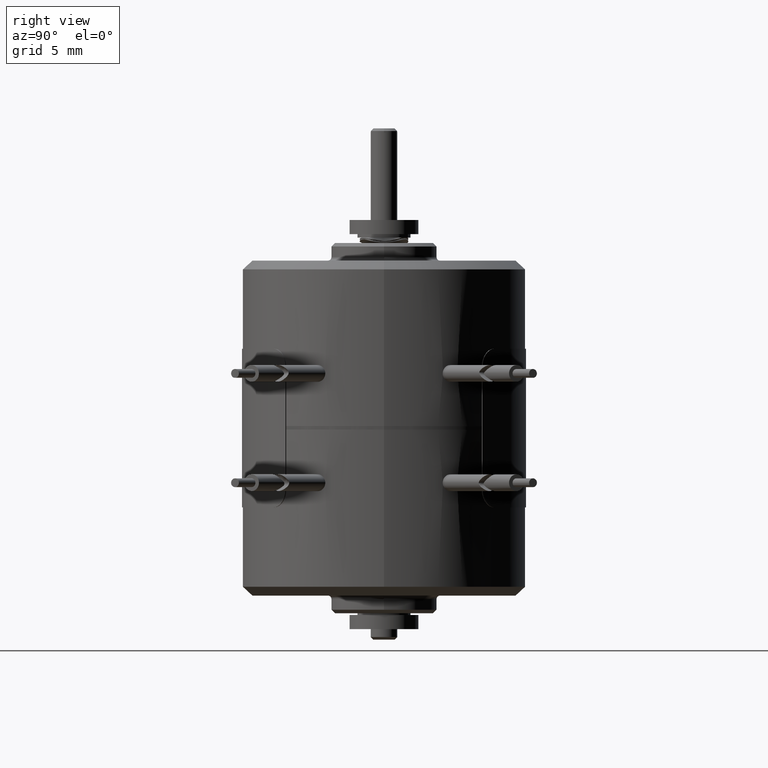
[diagram: clean part render]
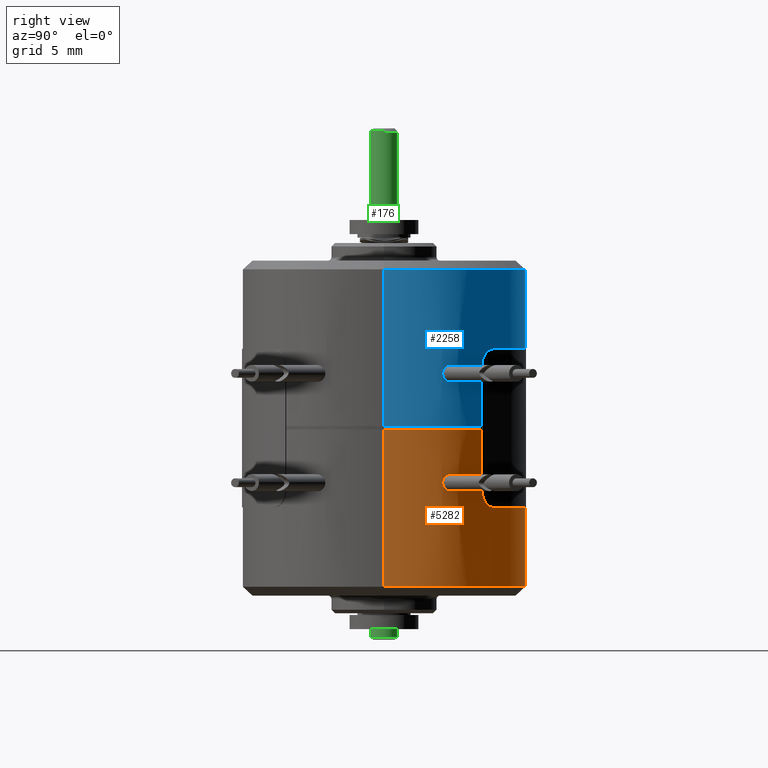
[diagram: same view with three faces highlighted in distinct colors, each labeled with its STEP entity id]
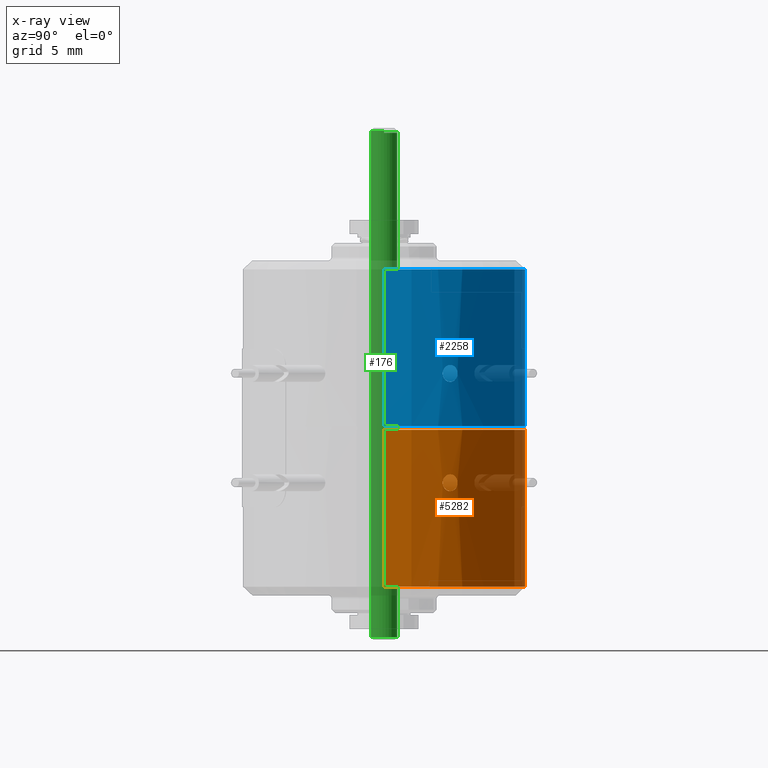
[diagram: x-ray of the same camera — body ghosted, the three highlighted faces saturated]
A machine part, right view with three faces highlighted in distinct colors.
The next image is the same camera in x-ray (body ghosted, the three faces saturated) — at least one of them is partly hidden behind the body in this view.
Their STEP definitions:

[orange] entity #5282 — the highlighted cylindrical surface (partial cylindrical patch) has radius 8 mm, axis along (0, 0, -1).
#4880=CARTESIAN_POINT('',(0.E0,0.E0,-5.2E0));
#4881=DIRECTION('',(0.E0,0.E0,1.E0));
#4882=DIRECTION('',(0.E0,-1.E0,0.E0));
#4883=AXIS2_PLACEMENT_3D('',#4880,#4881,#4882);
#4890=DIRECTION('',(0.E0,0.E0,-1.E0));
#4891=VECTOR('',#4890,8.9E0);
#4892=CARTESIAN_POINT('',(0.E0,8.E0,3.7E0));
#4893=LINE('',#4892,#4891);
#4894=CARTESIAN_POINT('',(3.755772502287E0,7.063580742871E0,-1.725E0));
#4895=CARTESIAN_POINT('',(3.796901404296E0,7.041712117759E0,-1.725E0));
#4896=CARTESIAN_POINT('',(3.875090514643E0,6.999249327187E0,-1.737996327031E0));
#4897=CARTESIAN_POINT('',(3.986204195695E0,6.936477109150E0,-1.796486858992E0));
#4898=CARTESIAN_POINT('',(4.073912431946E0,6.885184280694E0,-1.885920448363E0));
#4899=CARTESIAN_POINT('',(4.137396966451E0,6.847114994023E0,-2.001216491454E0));
#4900=CARTESIAN_POINT('',(4.169851461740E0,6.827325421922E0,-2.131922198005E0));
#4901=CARTESIAN_POINT('',(4.169912755514E0,6.827287946809E0,-2.267837830238E0));
#4902=CARTESIAN_POINT('',(4.137362617132E0,6.847136253151E0,-2.398926089969E0));
#4903=CARTESIAN_POINT('',(4.073767046311E0,6.885270327446E0,-2.514264029844E0));
#4904=CARTESIAN_POINT('',(3.986269142818E0,6.936437220698E0,-2.603401169177E0));
#4905=CARTESIAN_POINT('',(3.875504235395E0,6.999019712166E0,-2.661864885874E0));
#4906=CARTESIAN_POINT('',(3.797087717026E0,7.041613053523E0,-2.675E0));
#4907=CARTESIAN_POINT('',(3.755772502287E0,7.063580742871E0,-2.675E0));
#4909=CARTESIAN_POINT('',(3.755772502287E0,7.063580742871E0,-2.675E0));
#4910=CARTESIAN_POINT('',(3.714586523514E0,7.085479716237E0,-2.675E0));
#4911=CARTESIAN_POINT('',(3.635635455201E0,7.126557740311E0,-2.661830341621E0));
#4912=CARTESIAN_POINT('',(3.523430144312E0,7.182613140636E0,-2.604704446055E0));
#4913=CARTESIAN_POINT('',(3.430682382465E0,7.227241742174E0,-2.515177543079E0));
#4914=CARTESIAN_POINT('',(3.363597640728E0,7.258597553752E0,-2.400293323402E0));
#4915=CARTESIAN_POINT('',(3.328542600068E0,7.274671820021E0,-2.269648422363E0));
#4916=CARTESIAN_POINT('',(3.328091151049E0,7.274877592383E0,-2.133714865151E0));
#4917=CARTESIAN_POINT('',(3.362379877270E0,7.259159487813E0,-2.002691792995E0));
#4918=CARTESIAN_POINT('',(3.428578882022E0,7.228235307590E0,-1.887547241559E0));
#4919=CARTESIAN_POINT('',(3.521252373863E0,7.183689521245E0,-1.796606321832E0));
#4920=CARTESIAN_POINT('',(3.635636070695E0,7.126568049165E0,-1.737992544903E0));
#4921=CARTESIAN_POINT('',(3.714654197830E0,7.085443733165E0,-1.725E0));
#4922=CARTESIAN_POINT('',(3.755772502287E0,7.063580742871E0,-1.725E0));
#4924=DIRECTION('',(0.E0,0.E0,-1.E0));
#4925=VECTOR('',#4924,8.9E0);
#4926=CARTESIAN_POINT('',(0.E0,-8.E0,3.7E0));
#4927=LINE('',#4926,#4925);
#4971=CARTESIAN_POINT('',(0.E0,0.E0,3.7E0));
#4972=DIRECTION('',(0.E0,0.E0,-1.E0));
#4973=DIRECTION('',(0.E0,1.E0,0.E0));
#4974=AXIS2_PLACEMENT_3D('',#4971,#4972,#4973);
#5194=CARTESIAN_POINT('',(0.E0,-8.E0,-5.2E0));
#5195=CARTESIAN_POINT('',(0.E0,8.E0,-5.2E0));
#5196=VERTEX_POINT('',#5194);
#5197=VERTEX_POINT('',#5195);
#5198=CARTESIAN_POINT('',(0.E0,8.E0,3.7E0));
#5199=VERTEX_POINT('',#5198);
#5200=CARTESIAN_POINT('',(0.E0,-8.E0,3.7E0));
#5201=VERTEX_POINT('',#5200);
#5202=VERTEX_POINT('',#4894);
#5203=VERTEX_POINT('',#4907);
#5262=CARTESIAN_POINT('',(0.E0,0.E0,-5.72E0));
#5263=DIRECTION('',(0.E0,0.E0,1.E0));
#5264=DIRECTION('',(0.E0,1.E0,0.E0));
#5265=AXIS2_PLACEMENT_3D('',#5262,#5263,#5264);
#5266=CYLINDRICAL_SURFACE('',#5265,8.E0);
#5268=ORIENTED_EDGE('',*,*,#5267,.T.);
#5269=ORIENTED_EDGE('',*,*,#5255,.F.);
#5271=ORIENTED_EDGE('',*,*,#5270,.F.);
#5273=ORIENTED_EDGE('',*,*,#5272,.F.);
#5274=EDGE_LOOP('',(#5268,#5269,#5271,#5273));
#5275=FACE_OUTER_BOUND('',#5274,.F.);
#5277=ORIENTED_EDGE('',*,*,#5276,.T.);
#5279=ORIENTED_EDGE('',*,*,#5278,.T.);
#5280=EDGE_LOOP('',(#5277,#5279));
#5281=FACE_BOUND('',#5280,.F.);
#5282=ADVANCED_FACE('',(#5275,#5281),#5266,.T.);
#4884=CIRCLE('',#4883,8.E0);
#4908=B_SPLINE_CURVE_WITH_KNOTS('',3,(#4894,#4895,#4896,#4897,#4898,#4899,#4900,
#4901,#4902,#4903,#4904,#4905,#4906,#4907),.UNSPECIFIED.,.F.,.F.,(4,1,1,1,1,1,1,
1,1,1,1,4),(0.E0,9.090909090909E-2,1.818181818182E-1,2.727272727273E-1,
3.636363636364E-1,4.545454545455E-1,5.454545454545E-1,6.363636363636E-1,
7.272727272727E-1,8.181818181818E-1,9.090909090909E-1,1.E0),.UNSPECIFIED.);
#4923=B_SPLINE_CURVE_WITH_KNOTS('',3,(#4909,#4910,#4911,#4912,#4913,#4914,#4915,
#4916,#4917,#4918,#4919,#4920,#4921,#4922),.UNSPECIFIED.,.F.,.F.,(4,1,1,1,1,1,1,
1,1,1,1,4),(0.E0,9.090909090909E-2,1.818181818182E-1,2.727272727273E-1,
3.636363636364E-1,4.545454545455E-1,5.454545454545E-1,6.363636363636E-1,
7.272727272727E-1,8.181818181818E-1,9.090909090909E-1,1.E0),.UNSPECIFIED.);
#4975=CIRCLE('',#4974,8.E0);
#5255=EDGE_CURVE('',#5196,#5197,#4884,.T.);
#5267=EDGE_CURVE('',#5199,#5197,#4893,.T.);
#5270=EDGE_CURVE('',#5201,#5196,#4927,.T.);
#5272=EDGE_CURVE('',#5199,#5201,#4975,.T.);
#5276=EDGE_CURVE('',#5202,#5203,#4908,.T.);
#5278=EDGE_CURVE('',#5203,#5202,#4923,.T.);

[blue] entity #2258 — the highlighted cylindrical surface (partial cylindrical patch) has radius 8 mm, axis along (0, 0, 1).
#302=CARTESIAN_POINT('',(0.E0,0.E0,-5.2E0));
#303=DIRECTION('',(0.E0,0.E0,1.E0));
#304=DIRECTION('',(0.E0,1.E0,0.E0));
#305=AXIS2_PLACEMENT_3D('',#302,#303,#304);
#307=DIRECTION('',(0.E0,0.E0,-1.E0));
#308=VECTOR('',#307,8.9E0);
#309=CARTESIAN_POINT('',(0.E0,8.E0,3.7E0));
#310=LINE('',#309,#308);
#341=DIRECTION('',(0.E0,0.E0,-1.E0));
#342=VECTOR('',#341,8.9E0);
#343=CARTESIAN_POINT('',(0.E0,-8.E0,3.7E0));
#344=LINE('',#343,#342);
#345=CARTESIAN_POINT('',(-3.755772502287E0,7.063580742871E0,-1.725E0));
#346=CARTESIAN_POINT('',(-3.714586523514E0,7.085479716237E0,-1.725E0));
#347=CARTESIAN_POINT('',(-3.635635455201E0,7.126557740311E0,-1.738169658378E0));
#348=CARTESIAN_POINT('',(-3.523430144313E0,7.182613140635E0,-1.795295553944E0));
#349=CARTESIAN_POINT('',(-3.430682382465E0,7.227241742174E0,-1.884822456920E0));
#350=CARTESIAN_POINT('',(-3.363597640728E0,7.258597553752E0,-1.999706676598E0));
#351=CARTESIAN_POINT('',(-3.328542600068E0,7.274671820021E0,-2.130351577636E0));
#352=CARTESIAN_POINT('',(-3.328091151049E0,7.274877592383E0,-2.266285134848E0));
#353=CARTESIAN_POINT('',(-3.362379877270E0,7.259159487813E0,-2.397308207005E0));
#354=CARTESIAN_POINT('',(-3.428578882022E0,7.228235307590E0,-2.512452758441E0));
#355=CARTESIAN_POINT('',(-3.521252373863E0,7.183689521245E0,-2.603393678167E0));
#356=CARTESIAN_POINT('',(-3.635636070694E0,7.126568049165E0,-2.662007455096E0));
#357=CARTESIAN_POINT('',(-3.714654197830E0,7.085443733165E0,-2.675E0));
#358=CARTESIAN_POINT('',(-3.755772502287E0,7.063580742871E0,-2.675E0));
#360=CARTESIAN_POINT('',(-3.755772502287E0,7.063580742871E0,-2.675E0));
#361=CARTESIAN_POINT('',(-3.796917456096E0,7.041703582866E0,-2.675E0));
#362=CARTESIAN_POINT('',(-3.875123828881E0,6.999230227694E0,-2.661983383872E0));
#363=CARTESIAN_POINT('',(-3.986103884512E0,6.936534417537E0,-2.603575957731E0));
#364=CARTESIAN_POINT('',(-4.073874169188E0,6.885207279449E0,-2.514141415491E0));
#365=CARTESIAN_POINT('',(-4.137363573863E0,6.847135137575E0,-2.398865625677E0));
#366=CARTESIAN_POINT('',(-4.169847417661E0,6.827327942901E0,-2.268142251509E0));
#367=CARTESIAN_POINT('',(-4.169917018639E0,6.827285341078E0,-2.132189807374E0));
#368=CARTESIAN_POINT('',(-4.137371635616E0,6.847130725738E0,-2.001097583733E0));
#369=CARTESIAN_POINT('',(-4.073786388584E0,6.885259042825E0,-1.885756359992E0));
#370=CARTESIAN_POINT('',(-3.986247187131E0,6.936449813783E0,-1.796583323763E0));
#371=CARTESIAN_POINT('',(-3.875524919995E0,6.999008057754E0,-1.738144875307E0));
#372=CARTESIAN_POINT('',(-3.797096160284E0,7.041608564163E0,-1.725E0));
#373=CARTESIAN_POINT('',(-3.755772502287E0,7.063580742871E0,-1.725E0));
#379=CARTESIAN_POINT('',(0.E0,0.E0,3.7E0));
#380=DIRECTION('',(0.E0,0.E0,-1.E0));
#381=DIRECTION('',(0.E0,-1.E0,0.E0));
#382=AXIS2_PLACEMENT_3D('',#379,#380,#381);
#2047=CARTESIAN_POINT('',(0.E0,-8.E0,-5.2E0));
#2048=CARTESIAN_POINT('',(0.E0,8.E0,-5.2E0));
#2049=VERTEX_POINT('',#2047);
#2050=VERTEX_POINT('',#2048);
#2051=CARTESIAN_POINT('',(0.E0,8.E0,3.7E0));
#2052=VERTEX_POINT('',#2051);
#2053=CARTESIAN_POINT('',(0.E0,-8.E0,3.7E0));
#2054=VERTEX_POINT('',#2053);
#2057=VERTEX_POINT('',#345);
#2058=VERTEX_POINT('',#358);
#2240=CARTESIAN_POINT('',(0.E0,0.E0,-5.72E0));
#2241=DIRECTION('',(0.E0,0.E0,1.E0));
#2242=DIRECTION('',(0.E0,1.E0,0.E0));
#2243=AXIS2_PLACEMENT_3D('',#2240,#2241,#2242);
#2244=CYLINDRICAL_SURFACE('',#2243,8.E0);
#2245=ORIENTED_EDGE('',*,*,#2224,.F.);
#2247=ORIENTED_EDGE('',*,*,#2246,.F.);
#2248=ORIENTED_EDGE('',*,*,#2227,.T.);
#2249=ORIENTED_EDGE('',*,*,#2214,.F.);
#2250=EDGE_LOOP('',(#2245,#2247,#2248,#2249));
#2251=FACE_OUTER_BOUND('',#2250,.F.);
#2253=ORIENTED_EDGE('',*,*,#2252,.T.);
#2255=ORIENTED_EDGE('',*,*,#2254,.T.);
#2256=EDGE_LOOP('',(#2253,#2255));
#2257=FACE_BOUND('',#2256,.F.);
#2258=ADVANCED_FACE('',(#2251,#2257),#2244,.T.);
#306=CIRCLE('',#305,8.E0);
#359=B_SPLINE_CURVE_WITH_KNOTS('',3,(#345,#346,#347,#348,#349,#350,#351,#352,
#353,#354,#355,#356,#357,#358),.UNSPECIFIED.,.F.,.F.,(4,1,1,1,1,1,1,1,1,1,1,4),(
0.E0,9.090909090909E-2,1.818181818182E-1,2.727272727273E-1,3.636363636364E-1,
4.545454545455E-1,5.454545454545E-1,6.363636363636E-1,7.272727272727E-1,
8.181818181818E-1,9.090909090909E-1,1.E0),.UNSPECIFIED.);
#374=B_SPLINE_CURVE_WITH_KNOTS('',3,(#360,#361,#362,#363,#364,#365,#366,#367,
#368,#369,#370,#371,#372,#373),.UNSPECIFIED.,.F.,.F.,(4,1,1,1,1,1,1,1,1,1,1,4),(
0.E0,9.090909090909E-2,1.818181818182E-1,2.727272727273E-1,3.636363636364E-1,
4.545454545455E-1,5.454545454545E-1,6.363636363636E-1,7.272727272727E-1,
8.181818181818E-1,9.090909090909E-1,1.E0),.UNSPECIFIED.);
#383=CIRCLE('',#382,8.E0);
#2214=EDGE_CURVE('',#2050,#2049,#306,.T.);
#2224=EDGE_CURVE('',#2052,#2050,#310,.T.);
#2227=EDGE_CURVE('',#2054,#2049,#344,.T.);
#2246=EDGE_CURVE('',#2054,#2052,#383,.T.);
#2252=EDGE_CURVE('',#2057,#2058,#359,.T.);
#2254=EDGE_CURVE('',#2058,#2057,#374,.T.);

[green] entity #176 — the highlighted cylindrical surface (edge-blend (fillet) strip) has radius 0.75 mm, axis along (0, 0, -1).
#6=DIRECTION('',(-1.E0,-1.805369179198E-10,2.976475429251E-11));
#7=VECTOR('',#6,2.859995047064E1);
#8=CARTESIAN_POINT('',(1.185000000085E1,2.273451752107E-8,7.499999991487E-1));
#9=LINE('',#8,#7);
#15=CARTESIAN_POINT('',(-1.674995046978E1,0.E0,0.E0));
#16=DIRECTION('',(-1.E0,0.E0,0.E0));
#17=DIRECTION('',(0.E0,1.E0,0.E0));
#18=AXIS2_PLACEMENT_3D('',#15,#16,#17);
#28=CARTESIAN_POINT('',(1.185E1,0.E0,0.E0));
#29=DIRECTION('',(-1.E0,0.E0,0.E0));
#30=DIRECTION('',(0.E0,0.E0,-1.E0));
#31=AXIS2_PLACEMENT_3D('',#28,#29,#30);
#33=DIRECTION('',(-1.E0,1.805369100699E-10,-2.976475817441E-11));
#34=VECTOR('',#33,2.859995047064E1);
#35=CARTESIAN_POINT('',(1.185000000085E1,-5.163346777968E-9,
-7.499999991487E-1));
#36=LINE('',#35,#34);
#37=DIRECTION('',(-1.E0,-9.098377473352E-9,-3.246295420713E-8));
#38=VECTOR('',#37,1.000495311257E-1);
#39=CARTESIAN_POINT('',(-1.674995046978E1,7.5E-1,0.E0));
#40=LINE('',#39,#38);
#41=CARTESIAN_POINT('',(-1.685E1,0.E0,0.E0));
#42=DIRECTION('',(-1.E0,0.E0,0.E0));
#43=DIRECTION('',(0.E0,1.E0,0.E0));
#44=AXIS2_PLACEMENT_3D('',#41,#42,#43);
#46=DIRECTION('',(1.E0,-9.098376363678E-9,-3.246295320332E-8));
#47=VECTOR('',#46,1.000495311257E-1);
#48=CARTESIAN_POINT('',(-1.685000000091E1,-7.499999990897E-1,
3.247903384720E-9));
#49=LINE('',#48,#47);
#50=CARTESIAN_POINT('',(-1.674995046978E1,0.E0,0.E0));
#51=DIRECTION('',(-1.E0,0.E0,0.E0));
#52=DIRECTION('',(0.E0,-1.E0,0.E0));
#53=AXIS2_PLACEMENT_3D('',#50,#51,#52);
#83=CARTESIAN_POINT('',(-1.674995046978E1,-7.5E-1,0.E0));
#84=CARTESIAN_POINT('',(-1.674995046978E1,1.757117061044E-8,7.5E-1));
#85=VERTEX_POINT('',#83);
#86=VERTEX_POINT('',#84);
#87=CARTESIAN_POINT('',(-1.674995046978E1,7.5E-1,0.E0));
#88=CARTESIAN_POINT('',(-1.674995046978E1,0.E0,-7.5E-1));
#89=VERTEX_POINT('',#87);
#90=VERTEX_POINT('',#88);
#95=CARTESIAN_POINT('',(-1.685E1,7.5E-1,0.E0));
#96=CARTESIAN_POINT('',(-1.685E1,-7.5E-1,0.E0));
#97=VERTEX_POINT('',#95);
#98=VERTEX_POINT('',#96);
#99=CARTESIAN_POINT('',(1.185E1,0.E0,-7.5E-1));
#100=CARTESIAN_POINT('',(1.185E1,1.757117027737E-8,7.5E-1));
#101=VERTEX_POINT('',#99);
#102=VERTEX_POINT('',#100);
#160=CARTESIAN_POINT('',(-1.69E1,0.E0,0.E0));
#161=DIRECTION('',(1.E0,0.E0,0.E0));
#162=DIRECTION('',(0.E0,0.E0,-1.E0));
#163=AXIS2_PLACEMENT_3D('',#160,#161,#162);
#164=CYLINDRICAL_SURFACE('',#163,7.5E-1);
#165=ORIENTED_EDGE('',*,*,#151,.F.);
#166=ORIENTED_EDGE('',*,*,#126,.T.);
#167=ORIENTED_EDGE('',*,*,#124,.F.);
#168=ORIENTED_EDGE('',*,*,#122,.T.);
#170=ORIENTED_EDGE('',*,*,#169,.T.);
#171=ORIENTED_EDGE('',*,*,#118,.T.);
#172=ORIENTED_EDGE('',*,*,#116,.T.);
#173=ORIENTED_EDGE('',*,*,#114,.F.);
#174=EDGE_LOOP('',(#165,#166,#167,#168,#170,#171,#172,#173));
#175=FACE_OUTER_BOUND('',#174,.F.);
#176=ADVANCED_FACE('',(#175),#164,.T.);
#19=CIRCLE('',#18,7.5E-1);
#32=CIRCLE('',#31,7.5E-1);
#45=CIRCLE('',#44,7.5E-1);
#54=CIRCLE('',#53,7.5E-1);
#114=EDGE_CURVE('',#102,#86,#9,.T.);
#116=EDGE_CURVE('',#85,#86,#54,.T.);
#118=EDGE_CURVE('',#98,#85,#49,.T.);
#122=EDGE_CURVE('',#89,#97,#40,.T.);
#124=EDGE_CURVE('',#89,#90,#19,.T.);
#126=EDGE_CURVE('',#101,#90,#36,.T.);
#151=EDGE_CURVE('',#101,#102,#32,.T.);
#169=EDGE_CURVE('',#97,#98,#45,.T.);